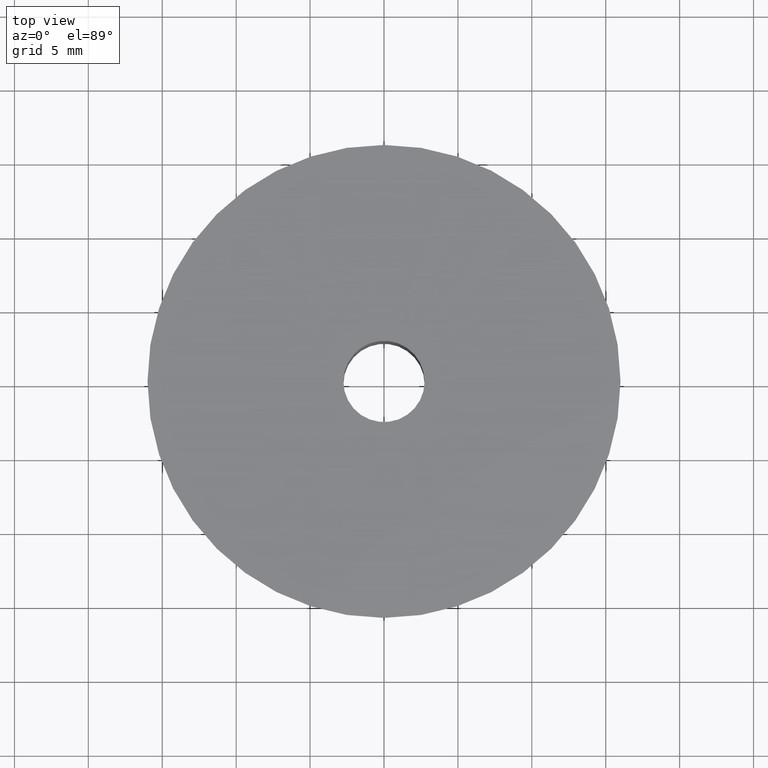
[diagram: clean part render]
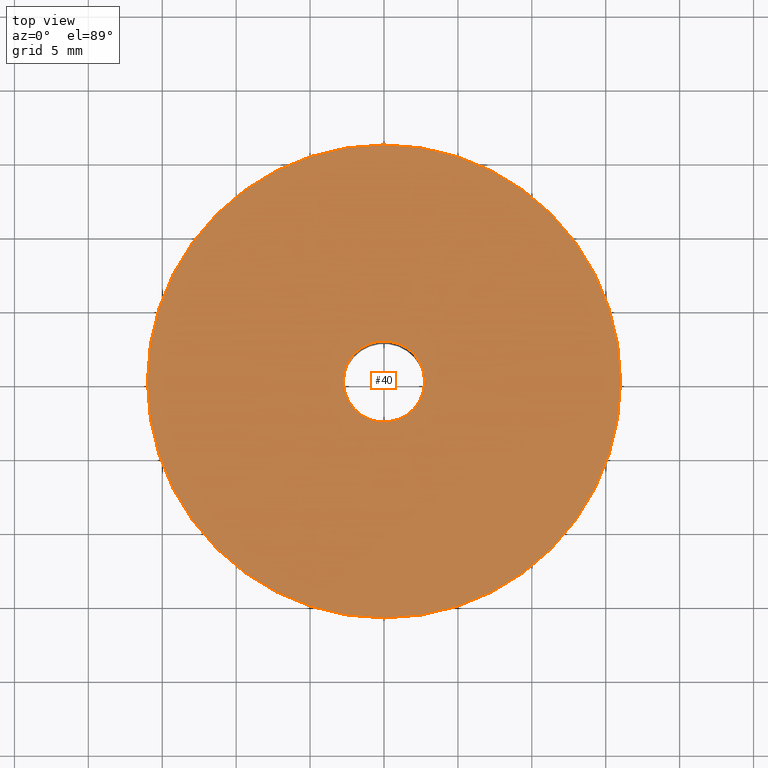
[diagram: same view with one face highlighted and labeled with its STEP entity id]
A machine part, top view. The second image highlights one B-rep face of the part: STEP entity #40.
In plain terms, the highlighted planar face has unit normal (0, 0, 1).
Its self-contained STEP definition (entity closure, byte-faithful):
#40=ADVANCED_FACE('',(#52,#53),#51,.T.);
#51=PLANE('',#167);
#52=FACE_OUTER_BOUND('',#168,.T.);
#53=FACE_BOUND('',#169,.T.);
#164=CARTESIAN_POINT('',(-2.08000000000E+01,-3.32553755053E+01,0.00000000000E+00));
#165=DIRECTION('',(0.00000000000E+00,0.00000000000E+00,1.00000000000E+00));
#166=DIRECTION('',(1.00000000000E+00,0.00000000000E+00,-0.00000000000E+00));
#167=AXIS2_PLACEMENT_3D('',#164,#165,#166);
#168=EDGE_LOOP('',(#276,#277));
#169=EDGE_LOOP('',(#278,#279));
#276=ORIENTED_EDGE('',*,*,#320,.F.);
#277=ORIENTED_EDGE('',*,*,#321,.F.);
#278=ORIENTED_EDGE('',*,*,#322,.T.);
#279=ORIENTED_EDGE('',*,*,#323,.T.);
#320=EDGE_CURVE('',#342,#343,#344,.T.);
#321=EDGE_CURVE('',#343,#342,#350,.T.);
#322=EDGE_CURVE('',#356,#357,#358,.T.);
#323=EDGE_CURVE('',#357,#356,#364,.T.);
#342=VERTEX_POINT('',#488);
#343=VERTEX_POINT('',#489);
#344=CIRCLE('',#493,1.60000000000E+01);
#350=CIRCLE('',#497,1.60000000000E+01);
#356=VERTEX_POINT('',#498);
#357=VERTEX_POINT('',#499);
#358=CIRCLE('',#503,2.75000000000E+00);
#364=CIRCLE('',#507,2.75000000000E+00);
#488=CARTESIAN_POINT('',(1.60000000000E+01,1.77635683940E-15,0.00000000000E+00));
#489=CARTESIAN_POINT('',(-1.60000000000E+01,0.00000000000E+00,0.00000000000E+00));
#490=CARTESIAN_POINT('',(-3.55271367880E-14,0.00000000000E+00,0.00000000000E+00));
#491=DIRECTION('',(-0.00000000000E+00,0.00000000000E+00,-1.00000000000E+00));
#492=DIRECTION('',(-1.00000000000E+00,-1.22460635382E-16,0.00000000000E+00));
#493=AXIS2_PLACEMENT_3D('',#490,#491,#492);
#494=CARTESIAN_POINT('',(-3.55271367880E-14,0.00000000000E+00,0.00000000000E+00));
#495=DIRECTION('',(-0.00000000000E+00,0.00000000000E+00,-1.00000000000E+00));
#496=DIRECTION('',(-1.00000000000E+00,-1.22460635382E-16,0.00000000000E+00));
#497=AXIS2_PLACEMENT_3D('',#494,#495,#496);
#498=CARTESIAN_POINT('',(-2.75000000000E+00,0.00000000000E+00,0.00000000000E+00));
#499=CARTESIAN_POINT('',(2.75000000000E+00,1.48029736617E-16,0.00000000000E+00));
#500=CARTESIAN_POINT('',(-3.55271367880E-14,0.00000000000E+00,0.00000000000E+00));
#501=DIRECTION('',(-0.00000000000E+00,0.00000000000E+00,-1.00000000000E+00));
#502=DIRECTION('',(-1.00000000000E+00,-1.22460635382E-16,0.00000000000E+00));
#503=AXIS2_PLACEMENT_3D('',#500,#501,#502);
#504=CARTESIAN_POINT('',(-3.55271367880E-14,0.00000000000E+00,0.00000000000E+00));
#505=DIRECTION('',(-0.00000000000E+00,0.00000000000E+00,-1.00000000000E+00));
#506=DIRECTION('',(-1.00000000000E+00,-1.22460635382E-16,0.00000000000E+00));
#507=AXIS2_PLACEMENT_3D('',#504,#505,#506);